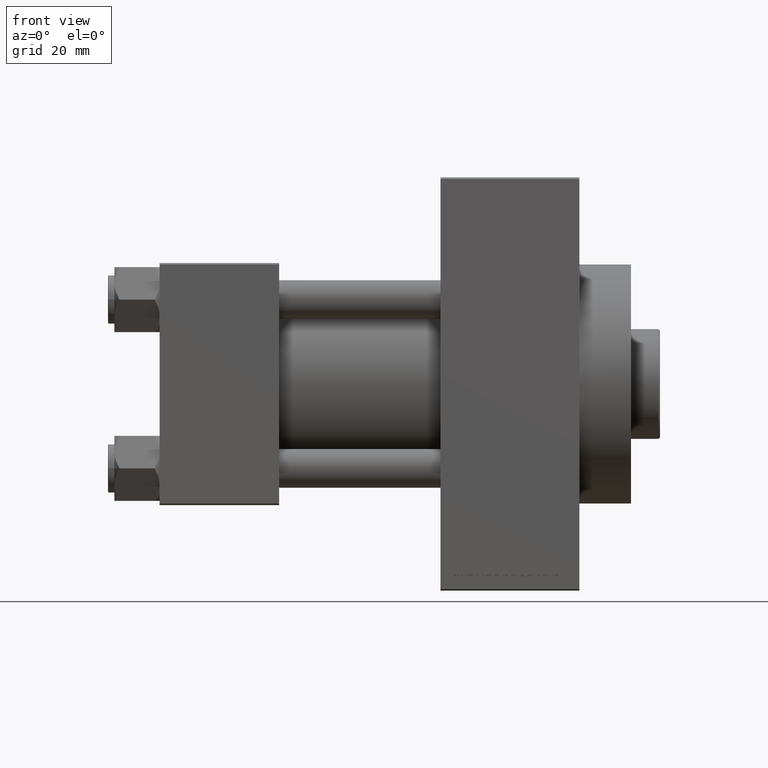
[diagram: clean part render]
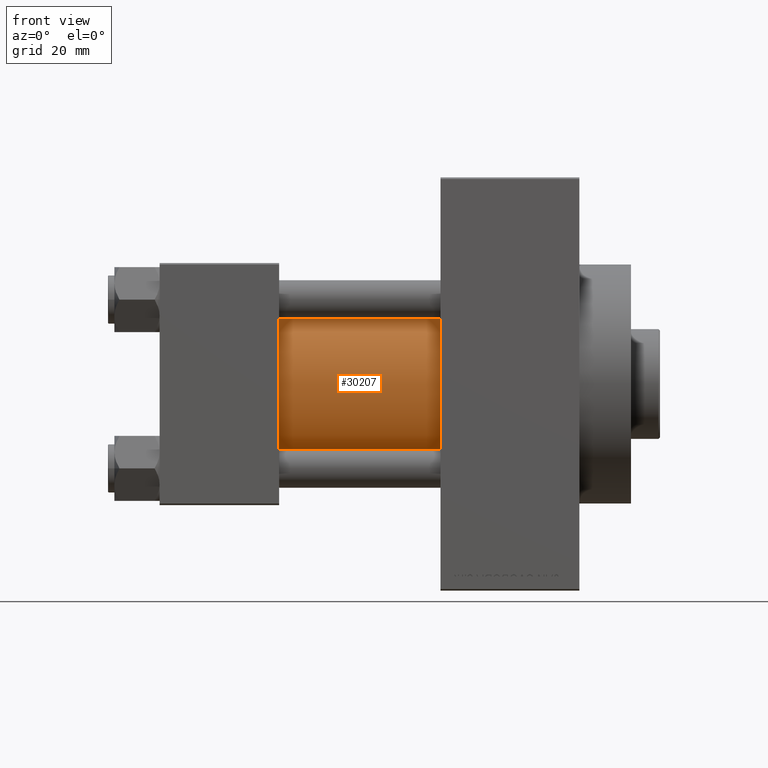
[diagram: same view with one face highlighted and labeled with its STEP entity id]
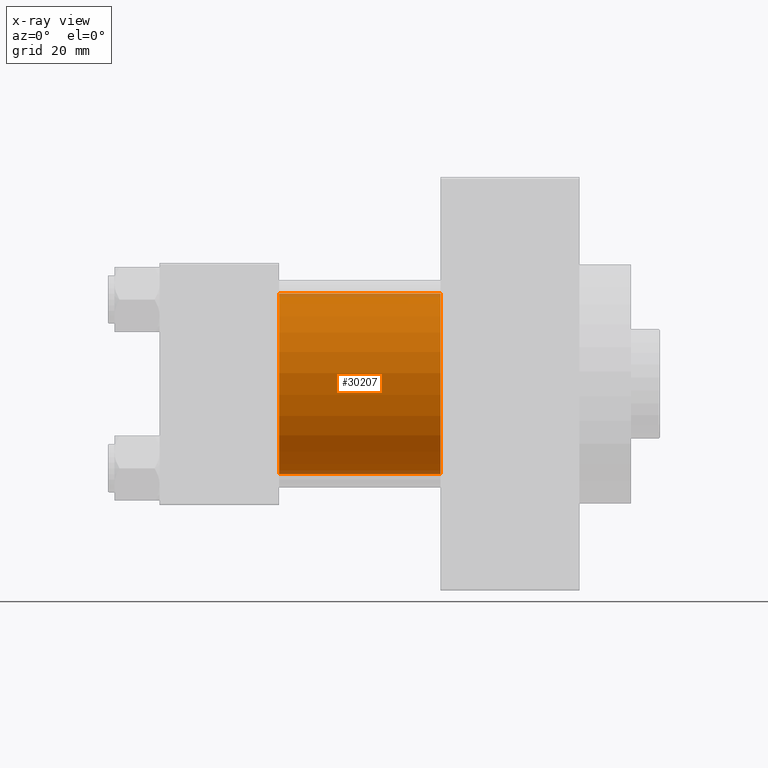
[diagram: x-ray of the same camera — body ghosted, the highlighted face saturated]
A machine part, front view. The second image highlights one B-rep face of the part: STEP entity #30207.
The next image is the same camera in x-ray: the body ghosted, the highlighted face saturated — about 4% of this face is hidden behind the body in this view.
In plain terms, the highlighted cylindrical surface (partial cylindrical patch) has radius 28 mm, axis along (-1, -0, -0).
Its self-contained STEP definition (entity closure, byte-faithful):
#3090 = DIRECTION ( 'NONE',  ( 1.000000000000000000, 0.000000000000000000, 0.000000000000000000 ) ) ;
#3575 = CARTESIAN_POINT ( 'NONE',  ( 87.00000000000000000, 8.269258236473784371E-16, -28.00000000000000000 ) ) ;
#5289 = CARTESIAN_POINT ( 'NONE',  ( 37.00000000000000000, -2.602085213965210642E-15, 28.00000000000000000 ) ) ;
#6649 = ORIENTED_EDGE ( 'NONE', *, *, #37982, .T. ) ;
#7908 = DIRECTION ( 'NONE',  ( 0.000000000000000000, 0.000000000000000000, 1.000000000000000000 ) ) ;
#12186 = DIRECTION ( 'NONE',  ( -1.000000000000000000, -0.000000000000000000, -0.000000000000000000 ) ) ;
#13230 = CIRCLE ( 'NONE', #30027, 28.00000000000000000 ) ;
#14455 = ORIENTED_EDGE ( 'NONE', *, *, #21158, .T. ) ;
#14874 = DIRECTION ( 'NONE',  ( 1.000000000000000000, -0.000000000000000000, 0.000000000000000000 ) ) ;
#15062 = CYLINDRICAL_SURFACE ( 'NONE', #29857, 28.00000000000000000 ) ;
#15888 = EDGE_CURVE ( 'NONE', #32145, #40867, #28761, .T. ) ;
#16719 = VECTOR ( 'NONE', #27928, 1000.000000000000000 ) ;
#20360 = CARTESIAN_POINT ( 'NONE',  ( 87.00000000000000000, -2.602085213965210642E-15, 0.000000000000000000 ) ) ;
#20918 = ORIENTED_EDGE ( 'NONE', *, *, #34377, .F. ) ;
#21158 = EDGE_CURVE ( 'NONE', #32145, #38882, #46527, .T. ) ;
#25418 = VECTOR ( 'NONE', #42273, 1000.000000000000000 ) ;
#27928 = DIRECTION ( 'NONE',  ( -1.000000000000000000, -0.000000000000000000, -0.000000000000000000 ) ) ;
#28653 = DIRECTION ( 'NONE',  ( 0.000000000000000000, 0.000000000000000000, -1.000000000000000000 ) ) ;
#28761 = CIRCLE ( 'NONE', #32583, 28.00000000000000000 ) ;
#28989 = CARTESIAN_POINT ( 'NONE',  ( 87.00000000000000000, -2.602085213965210642E-15, 28.00000000000000000 ) ) ;
#29857 = AXIS2_PLACEMENT_3D ( 'NONE', #40606, #12186, #7908 ) ;
#30027 = AXIS2_PLACEMENT_3D ( 'NONE', #44463, #14874, #40653 ) ;
#30207 = ADVANCED_FACE ( 'NONE', ( #44177 ), #15062, .T. ) ;
#30804 = VERTEX_POINT ( 'NONE', #42650 ) ;
#32145 = VERTEX_POINT ( 'NONE', #28989 ) ;
#32583 = AXIS2_PLACEMENT_3D ( 'NONE', #20360, #3090, #28653 ) ;
#34146 = EDGE_LOOP ( 'NONE', ( #20918, #46739, #14455, #6649 ) ) ;
#34377 = EDGE_CURVE ( 'NONE', #40867, #30804, #38228, .T. ) ;
#34889 = CARTESIAN_POINT ( 'NONE',  ( 87.00000000000000000, 8.269258236473784371E-16, -28.00000000000000000 ) ) ;
#35574 = CARTESIAN_POINT ( 'NONE',  ( 87.00000000000000000, -2.602085213965210642E-15, 28.00000000000000000 ) ) ;
#37982 = EDGE_CURVE ( 'NONE', #38882, #30804, #13230, .T. ) ;
#38228 = LINE ( 'NONE', #34889, #25418 ) ;
#38882 = VERTEX_POINT ( 'NONE', #5289 ) ;
#40606 = CARTESIAN_POINT ( 'NONE',  ( 87.00000000000000000, -2.602085213965210642E-15, 0.000000000000000000 ) ) ;
#40653 = DIRECTION ( 'NONE',  ( 0.000000000000000000, 0.000000000000000000, 1.000000000000000000 ) ) ;
#40867 = VERTEX_POINT ( 'NONE', #3575 ) ;
#42273 = DIRECTION ( 'NONE',  ( -1.000000000000000000, -0.000000000000000000, -0.000000000000000000 ) ) ;
#42650 = CARTESIAN_POINT ( 'NONE',  ( 37.00000000000000000, 8.269258236473784371E-16, -28.00000000000000000 ) ) ;
#44177 = FACE_OUTER_BOUND ( 'NONE', #34146, .T. ) ;
#44463 = CARTESIAN_POINT ( 'NONE',  ( 37.00000000000000000, -2.602085213965210642E-15, 0.000000000000000000 ) ) ;
#46527 = LINE ( 'NONE', #35574, #16719 ) ;
#46739 = ORIENTED_EDGE ( 'NONE', *, *, #15888, .F. ) ;